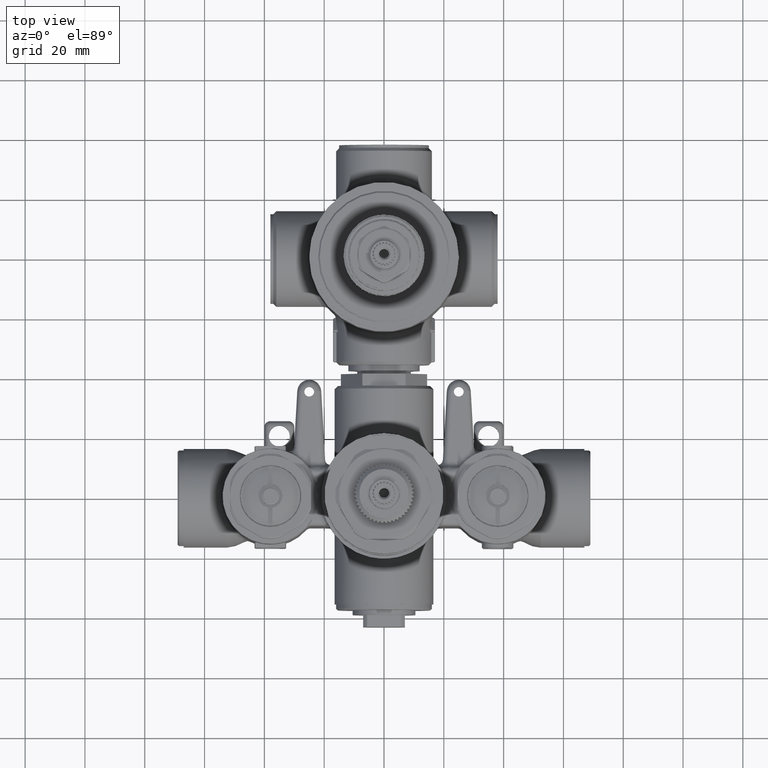
[diagram: clean part render]
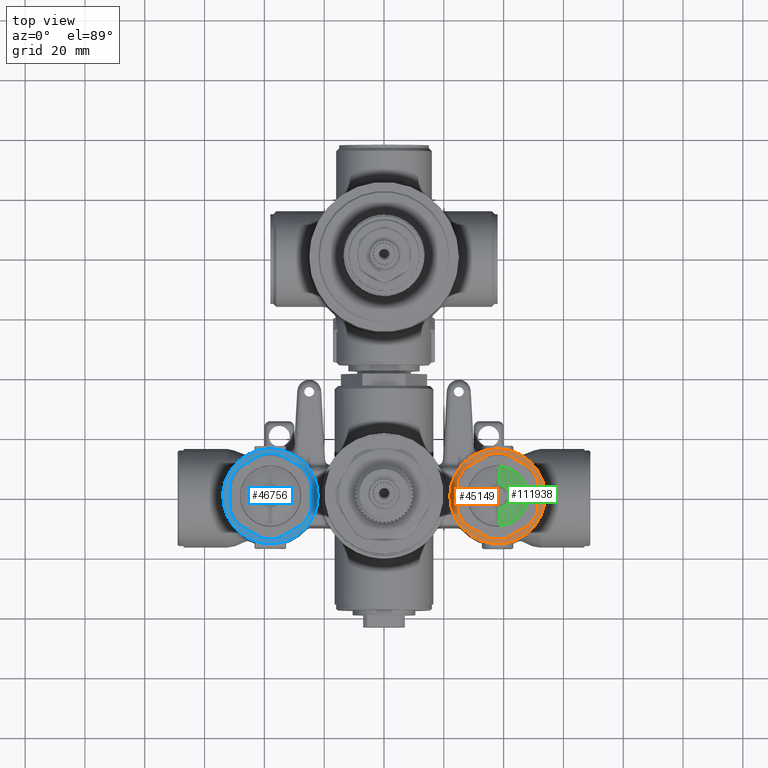
[diagram: same view with three faces highlighted in distinct colors, each labeled with its STEP entity id]
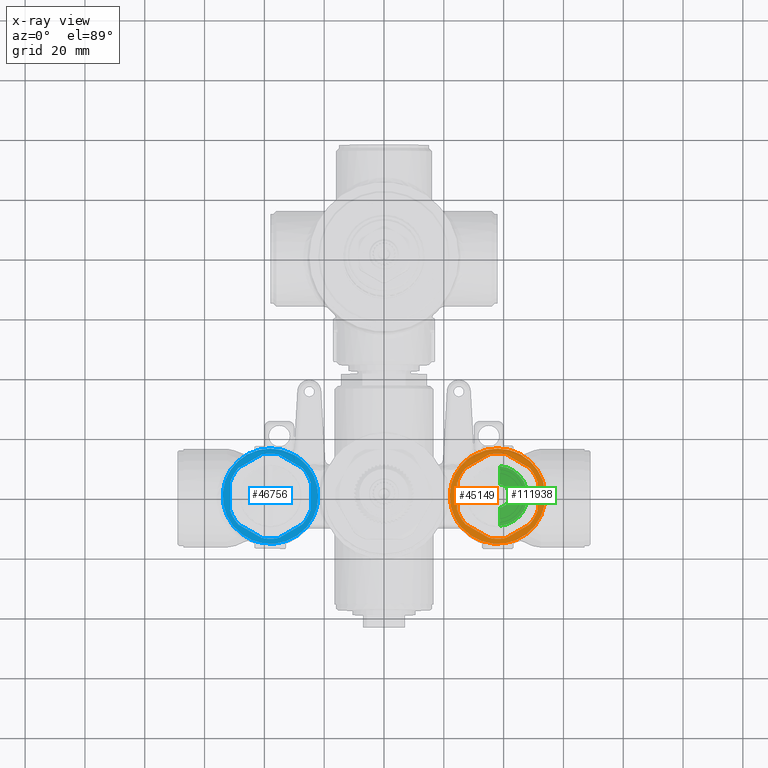
[diagram: x-ray of the same camera — body ghosted, the three highlighted faces saturated]
A machine part, top view with three faces highlighted in distinct colors.
The next image is the same camera in x-ray (body ghosted, the three faces saturated) — at least one of them is partly hidden behind the body in this view.
Their STEP definitions:

[orange] entity #45149 — the highlighted planar face has unit normal (0, 0, 1).
#60=DIRECTION('',(-8.660254037505E-1,-5.000000000588E-1,0.E0));
#61=VECTOR('',#60,3.592182597736E-1);
#62=CARTESIAN_POINT('',(1.385861029833E0,5.500936574872E-1,-7.559018110236E-1));
#63=LINE('',#62,#61);
#64=CARTESIAN_POINT('',(1.496062992115E0,0.E0,-7.559018110236E-1));
#65=DIRECTION('',(0.E0,0.E0,-1.E0));
#66=DIRECTION('',(-9.473684210394E-1,3.201453963706E-1,0.E0));
#67=AXIS2_PLACEMENT_3D('',#64,#65,#66);
#69=DIRECTION('',(-3.843704563953E-11,-1.E0,0.E0));
#70=VECTOR('',#69,3.592182597809E-1);
#71=CARTESIAN_POINT('',(9.645669291466E-1,1.796091299133E-1,
-7.559018110236E-1));
#72=LINE('',#71,#70);
#73=CARTESIAN_POINT('',(1.496062992115E0,0.E0,-7.559018110236E-1));
#74=DIRECTION('',(0.E0,0.E0,-1.E0));
#75=DIRECTION('',(-7.509382566720E-1,-6.603724211885E-1,0.E0));
#76=AXIS2_PLACEMENT_3D('',#73,#74,#75);
#78=DIRECTION('',(8.660254037954E-1,-4.999999999811E-1,0.E0));
#79=VECTOR('',#78,3.592182595757E-1);
#80=CARTESIAN_POINT('',(1.074768891487E0,-3.704845276953E-1,
-7.559018110236E-1));
#81=LINE('',#80,#79);
#82=CARTESIAN_POINT('',(1.496062992115E0,0.E0,-7.559018110236E-1));
#83=DIRECTION('',(0.E0,0.E0,-1.E0));
#84=DIRECTION('',(1.964301644593E-1,-9.805178175283E-1,0.E0));
#85=AXIS2_PLACEMENT_3D('',#82,#83,#84);
#87=DIRECTION('',(8.660254037654E-1,5.000000000329E-1,0.E0));
#88=VECTOR('',#87,3.592182595757E-1);
#89=CARTESIAN_POINT('',(1.606264954480E0,-5.500936574679E-1,
-7.559018110236E-1));
#90=LINE('',#89,#88);
#91=CARTESIAN_POINT('',(1.496062992115E0,0.E0,-7.559018110236E-1));
#92=DIRECTION('',(0.E0,0.E0,-1.E0));
#93=DIRECTION('',(9.473684210532E-1,-3.201453963299E-1,0.E0));
#94=AXIS2_PLACEMENT_3D('',#91,#92,#93);
#96=DIRECTION('',(6.836672896980E-11,1.E0,0.E0));
#97=VECTOR('',#96,3.592182595831E-1);
#98=CARTESIAN_POINT('',(2.027559055108E0,-1.796091298321E-1,
-7.559018110236E-1));
#99=LINE('',#98,#97);
#100=CARTESIAN_POINT('',(1.496062992115E0,0.E0,-7.559018110236E-1));
#101=DIRECTION('',(0.E0,0.E0,-1.E0));
#102=DIRECTION('',(7.509382567128E-1,6.603724211421E-1,0.E0));
#103=AXIS2_PLACEMENT_3D('',#100,#101,#102);
#105=DIRECTION('',(-8.660254037804E-1,5.000000000070E-1,0.E0));
#106=VECTOR('',#105,3.592182597736E-1);
#107=CARTESIAN_POINT('',(1.917357092827E0,3.704845276064E-1,
-7.559018110236E-1));
#108=LINE('',#107,#106);
#109=CARTESIAN_POINT('',(1.496062992137E0,0.E0,-7.559018107676E-1));
#110=DIRECTION('',(1.122966409733E-9,0.E0,1.E0));
#111=DIRECTION('',(-7.453559929111E-1,-6.666666662070E-1,8.370117532040E-10));
#112=AXIS2_PLACEMENT_3D('',#109,#110,#111);
#134=CARTESIAN_POINT('',(1.197536238559E0,5.518503399893E-1,
-7.559018047628E-1));
#135=CARTESIAN_POINT('',(1.190894101108E0,5.482575198271E-1,
-7.559018047628E-1));
#136=CARTESIAN_POINT('',(1.177991653244E0,5.412246959471E-1,
-7.559018121224E-1));
#137=CARTESIAN_POINT('',(1.159528784663E0,5.303948730774E-1,
-7.559018165690E-1));
#138=CARTESIAN_POINT('',(1.148848581527E0,5.234703120119E-1,
-7.559017973519E-1));
#139=CARTESIAN_POINT('',(1.143815870117E0,5.200615449805E-1,
-7.559017973519E-1));
#153=CARTESIAN_POINT('',(1.496062992222E0,-2.007096534185E-10,
-7.559018322200E-1));
#154=DIRECTION('',(2.234526305236E-8,-2.532551507587E-8,1.E0));
#155=DIRECTION('',(-5.607907059800E-1,8.279575980003E-1,3.349946848307E-8));
#156=AXIS2_PLACEMENT_3D('',#153,#154,#155);
#163=CARTESIAN_POINT('',(9.678579580847E-1,4.724409448636E-1,
-7.559018107735E-1));
#164=DIRECTION('',(-8.545545221388E-10,3.431693024004E-9,-1.E0));
#165=DIRECTION('',(7.453559924514E-1,-6.666666667209E-1,-2.924743199493E-9));
#166=AXIS2_PLACEMENT_3D('',#163,#164,#165);
#185=CARTESIAN_POINT('',(1.016069551814E0,4.079302524523E-1,
-7.559018110211E-1));
#186=CARTESIAN_POINT('',(9.888099091498E-1,3.758257936139E-1,
-7.559019102859E-1));
#187=CARTESIAN_POINT('',(9.407113942130E-1,3.061408668400E-1,
-7.559017360037E-1));
#188=CARTESIAN_POINT('',(8.908405056121E-1,1.893573436246E-1,
-7.559018251838E-1));
#189=CARTESIAN_POINT('',(8.652525232606E-1,6.494994151090E-2,
-7.559018158154E-1));
#190=CARTESIAN_POINT('',(8.649585060834E-1,-6.203240845443E-2,
-7.559017637766E-1));
#191=CARTESIAN_POINT('',(8.899718568595E-1,-1.865558554637E-1,
-7.559019277806E-1));
#192=CARTESIAN_POINT('',(9.393011312797E-1,-3.035725856872E-1,
-7.559014420360E-1));
#193=CARTESIAN_POINT('',(9.870788595507E-1,-3.734711497347E-1,
-7.559025225465E-1));
#194=CARTESIAN_POINT('',(1.014183550554E0,-4.057044371927E-1,
-7.559018110276E-1));
#210=CARTESIAN_POINT('',(9.678579580929E-1,-4.724409448706E-1,
-7.559018111393E-1));
#211=DIRECTION('',(8.182009705714E-10,1.179423058925E-9,-1.E0));
#212=DIRECTION('',(5.701467944239E-1,8.215428368674E-1,1.435441193051E-9));
#213=AXIS2_PLACEMENT_3D('',#210,#211,#212);
#39193=CARTESIAN_POINT('',(1.496062992115E0,0.E0,-7.559018110236E-1));
#39194=DIRECTION('',(0.E0,0.E0,-1.E0));
#39195=DIRECTION('',(-1.964301644171E-1,9.805178175368E-1,0.E0));
#39196=AXIS2_PLACEMENT_3D('',#39193,#39194,#39195);
#40886=VERTEX_POINT('',#134);
#40887=VERTEX_POINT('',#139);
#40888=CARTESIAN_POINT('',(1.014176960358E0,-4.056984061177E-1,
-7.559018110227E-1));
#40889=CARTESIAN_POINT('',(1.028411040380E0,-4.182806210571E-1,
-7.559018110259E-1));
#40890=VERTEX_POINT('',#40888);
#40891=VERTEX_POINT('',#40889);
#40892=VERTEX_POINT('',#185);
#40893=CARTESIAN_POINT('',(1.027885670169E0,4.187505269537E-1,
-7.559018111534E-1));
#40894=VERTEX_POINT('',#40893);
#43396=CARTESIAN_POINT('',(1.606264954480E0,-5.500936574679E-1,
-7.559018110236E-1));
#43397=CARTESIAN_POINT('',(1.917357092769E0,-3.704845276682E-1,
-7.559018110236E-1));
#43398=VERTEX_POINT('',#43396);
#43399=VERTEX_POINT('',#43397);
#43400=CARTESIAN_POINT('',(2.027559055108E0,-1.796091298321E-1,
-7.559018110236E-1));
#43401=CARTESIAN_POINT('',(2.027559055133E0,1.796091297510E-1,
-7.559018110236E-1));
#43402=VERTEX_POINT('',#43400);
#43403=VERTEX_POINT('',#43401);
#43404=CARTESIAN_POINT('',(1.917357092827E0,3.704845276064E-1,
-7.559018110236E-1));
#43405=CARTESIAN_POINT('',(1.606264954361E0,5.500936574956E-1,
-7.559018110236E-1));
#43406=VERTEX_POINT('',#43404);
#43407=VERTEX_POINT('',#43405);
#43408=CARTESIAN_POINT('',(1.385861029833E0,5.500936574872E-1,
-7.559018110236E-1));
#43409=CARTESIAN_POINT('',(1.074768891378E0,3.704845275793E-1,
-7.559018110236E-1));
#43410=VERTEX_POINT('',#43408);
#43411=VERTEX_POINT('',#43409);
#43412=CARTESIAN_POINT('',(9.645669291466E-1,1.796091299133E-1,
-7.559018110236E-1));
#43413=CARTESIAN_POINT('',(9.645669291328E-1,-1.796091298676E-1,
-7.559018110236E-1));
#43414=VERTEX_POINT('',#43412);
#43415=VERTEX_POINT('',#43413);
#43416=CARTESIAN_POINT('',(1.074768891487E0,-3.704845276953E-1,
-7.559018110236E-1));
#43417=CARTESIAN_POINT('',(1.385861029787E0,-5.500936574763E-1,
-7.559018110236E-1));
#43418=VERTEX_POINT('',#43416);
#43419=VERTEX_POINT('',#43417);
#45105=CARTESIAN_POINT('',(1.494812612574E0,0.E0,-7.559018110236E-1));
#45106=DIRECTION('',(0.E0,0.E0,1.E0));
#45107=DIRECTION('',(0.E0,-1.E0,0.E0));
#45108=AXIS2_PLACEMENT_3D('',#45105,#45106,#45107);
#45109=PLANE('',#45108);
#45111=ORIENTED_EDGE('',*,*,#45110,.F.);
#45113=ORIENTED_EDGE('',*,*,#45112,.F.);
#45115=ORIENTED_EDGE('',*,*,#45114,.F.);
#45117=ORIENTED_EDGE('',*,*,#45116,.F.);
#45119=ORIENTED_EDGE('',*,*,#45118,.F.);
#45121=ORIENTED_EDGE('',*,*,#45120,.F.);
#45122=EDGE_LOOP('',(#45111,#45113,#45115,#45117,#45119,#45121));
#45123=FACE_OUTER_BOUND('',#45122,.F.);
#45125=ORIENTED_EDGE('',*,*,#45124,.F.);
#45127=ORIENTED_EDGE('',*,*,#45126,.T.);
#45129=ORIENTED_EDGE('',*,*,#45128,.F.);
#45130=ORIENTED_EDGE('',*,*,#45093,.T.);
#45132=ORIENTED_EDGE('',*,*,#45131,.F.);
#45134=ORIENTED_EDGE('',*,*,#45133,.T.);
#45136=ORIENTED_EDGE('',*,*,#45135,.F.);
#45138=ORIENTED_EDGE('',*,*,#45137,.T.);
#45140=ORIENTED_EDGE('',*,*,#45139,.F.);
#45142=ORIENTED_EDGE('',*,*,#45141,.T.);
#45144=ORIENTED_EDGE('',*,*,#45143,.F.);
#45146=ORIENTED_EDGE('',*,*,#45145,.T.);
#45147=EDGE_LOOP('',(#45125,#45127,#45129,#45130,#45132,#45134,#45136,#45138,
#45140,#45142,#45144,#45146));
#45148=FACE_BOUND('',#45147,.F.);
#45149=ADVANCED_FACE('',(#45123,#45148),#45109,.T.);
#68=CIRCLE('',#67,5.610236220472E-1);
#77=CIRCLE('',#76,5.610236220472E-1);
#86=CIRCLE('',#85,5.610236220472E-1);
#95=CIRCLE('',#94,5.610236220472E-1);
#104=CIRCLE('',#103,5.610236220472E-1);
#113=CIRCLE('',#112,6.274209320224E-1);
#140=B_SPLINE_CURVE_WITH_KNOTS('',3,(#134,#135,#136,#137,#138,#139),
.UNSPECIFIED.,.F.,.F.,(4,1,1,4),(0.E0,3.333333333333E-1,6.666666666667E-1,1.E0),
.UNSPECIFIED.);
#157=CIRCLE('',#156,6.281257906472E-1);
#167=CIRCLE('',#166,8.053562691192E-2);
#195=B_SPLINE_CURVE_WITH_KNOTS('',3,(#185,#186,#187,#188,#189,#190,#191,#192,
#193,#194),.UNSPECIFIED.,.F.,.F.,(4,1,1,1,1,1,1,4),(0.E0,1.428569405749E-1,
2.857138811499E-1,4.285708217248E-1,5.714277622997E-1,7.142847028747E-1,
8.571416434496E-1,1.E0),.UNSPECIFIED.);
#214=CIRCLE('',#213,8.124048528911E-2);
#39197=CIRCLE('',#39196,5.610236220472E-1);
#45093=EDGE_CURVE('',#43414,#43415,#72,.T.);
#45110=EDGE_CURVE('',#40891,#40886,#113,.T.);
#45112=EDGE_CURVE('',#40890,#40891,#214,.T.);
#45114=EDGE_CURVE('',#40892,#40890,#195,.T.);
#45116=EDGE_CURVE('',#40894,#40892,#167,.T.);
#45118=EDGE_CURVE('',#40887,#40894,#157,.T.);
#45120=EDGE_CURVE('',#40886,#40887,#140,.T.);
#45124=EDGE_CURVE('',#43410,#43407,#39197,.T.);
#45126=EDGE_CURVE('',#43410,#43411,#63,.T.);
#45128=EDGE_CURVE('',#43414,#43411,#68,.T.);
#45131=EDGE_CURVE('',#43418,#43415,#77,.T.);
#45133=EDGE_CURVE('',#43418,#43419,#81,.T.);
#45135=EDGE_CURVE('',#43398,#43419,#86,.T.);
#45137=EDGE_CURVE('',#43398,#43399,#90,.T.);
#45139=EDGE_CURVE('',#43402,#43399,#95,.T.);
#45141=EDGE_CURVE('',#43402,#43403,#99,.T.);
#45143=EDGE_CURVE('',#43406,#43403,#104,.T.);
#45145=EDGE_CURVE('',#43406,#43407,#108,.T.);

[blue] entity #46756 — the highlighted planar face has unit normal (0, 0, 1).
#1104=CARTESIAN_POINT('',(-1.014188321640E0,-4.057062922256E-1,
-7.559018110236E-1));
#1105=CARTESIAN_POINT('',(-9.870775072087E-1,-3.734761508112E-1,
-7.559019336386E-1));
#1106=CARTESIAN_POINT('',(-9.393015694095E-1,-3.035694586617E-1,
-7.559017076265E-1));
#1107=CARTESIAN_POINT('',(-8.899714431052E-1,-1.865567195852E-1,
-7.559019116283E-1));
#1108=CARTESIAN_POINT('',(-8.649587917366E-1,-6.203206909905E-2,
-7.559017258139E-1));
#1109=CARTESIAN_POINT('',(-8.652523171963E-1,6.494973280039E-2,
-7.559019697291E-1));
#1110=CARTESIAN_POINT('',(-8.908407052038E-1,1.893575751537E-1,
-7.559015705081E-1));
#1111=CARTESIAN_POINT('',(-9.407111160559E-1,3.061404718875E-1,
-7.559023286437E-1));
#1112=CARTESIAN_POINT('',(-9.888102137003E-1,3.758262784701E-1,
-7.559011563520E-1));
#1113=CARTESIAN_POINT('',(-1.016069551775E0,4.079302524241E-1,
-7.559018110236E-1));
#1133=DIRECTION('',(8.660254037505E-1,5.000000000588E-1,0.E0));
#1134=VECTOR('',#1133,3.592182597736E-1);
#1135=CARTESIAN_POINT('',(-1.385861029844E0,-5.500936574872E-1,
-7.559018110236E-1));
#1136=LINE('',#1135,#1134);
#1137=CARTESIAN_POINT('',(-1.496062992126E0,0.E0,-7.559018110236E-1));
#1138=DIRECTION('',(0.E0,0.E0,-1.E0));
#1139=DIRECTION('',(9.473684210394E-1,-3.201453963706E-1,0.E0));
#1140=AXIS2_PLACEMENT_3D('',#1137,#1138,#1139);
#1142=DIRECTION('',(3.843704563953E-11,1.E0,0.E0));
#1143=VECTOR('',#1142,3.592182597809E-1);
#1144=CARTESIAN_POINT('',(-9.645669291575E-1,-1.796091299133E-1,
-7.559018110236E-1));
#1145=LINE('',#1144,#1143);
#1146=CARTESIAN_POINT('',(-1.496062992126E0,0.E0,-7.559018110236E-1));
#1147=DIRECTION('',(0.E0,0.E0,-1.E0));
#1148=DIRECTION('',(7.509382566720E-1,6.603724211885E-1,0.E0));
#1149=AXIS2_PLACEMENT_3D('',#1146,#1147,#1148);
#1151=DIRECTION('',(-8.660254037954E-1,4.999999999811E-1,0.E0));
#1152=VECTOR('',#1151,3.592182595757E-1);
#1153=CARTESIAN_POINT('',(-1.074768891498E0,3.704845276953E-1,
-7.559018110236E-1));
#1154=LINE('',#1153,#1152);
#1155=CARTESIAN_POINT('',(-1.496062992126E0,0.E0,-7.559018110236E-1));
#1156=DIRECTION('',(0.E0,0.E0,-1.E0));
#1157=DIRECTION('',(-1.964301644593E-1,9.805178175283E-1,0.E0));
#1158=AXIS2_PLACEMENT_3D('',#1155,#1156,#1157);
#1160=DIRECTION('',(-8.660254037654E-1,-5.000000000329E-1,0.E0));
#1161=VECTOR('',#1160,3.592182595757E-1);
#1162=CARTESIAN_POINT('',(-1.606264954491E0,5.500936574679E-1,
-7.559018110236E-1));
#1163=LINE('',#1162,#1161);
#1164=CARTESIAN_POINT('',(-1.496062992126E0,0.E0,-7.559018110236E-1));
#1165=DIRECTION('',(0.E0,0.E0,-1.E0));
#1166=DIRECTION('',(-9.473684210532E-1,3.201453963299E-1,0.E0));
#1167=AXIS2_PLACEMENT_3D('',#1164,#1165,#1166);
#1169=DIRECTION('',(-6.836796523549E-11,-1.E0,0.E0));
#1170=VECTOR('',#1169,3.592182595831E-1);
#1171=CARTESIAN_POINT('',(-2.027559055119E0,1.796091298321E-1,
-7.559018110236E-1));
#1172=LINE('',#1171,#1170);
#1173=CARTESIAN_POINT('',(-1.496062992126E0,0.E0,-7.559018110236E-1));
#1174=DIRECTION('',(0.E0,0.E0,-1.E0));
#1175=DIRECTION('',(-7.509382567128E-1,-6.603724211421E-1,0.E0));
#1176=AXIS2_PLACEMENT_3D('',#1173,#1174,#1175);
#1178=DIRECTION('',(8.660254037804E-1,-5.000000000070E-1,0.E0));
#1179=VECTOR('',#1178,3.592182597736E-1);
#1180=CARTESIAN_POINT('',(-1.917357092837E0,-3.704845276064E-1,
-7.559018110236E-1));
#1181=LINE('',#1180,#1179);
#1182=CARTESIAN_POINT('',(-1.496062992090E0,1.844346089351E-10,
-7.559018123510E-1));
#1183=DIRECTION('',(3.937519814098E-9,1.080584575293E-8,1.E0));
#1184=DIRECTION('',(4.758001595927E-1,8.795534140299E-1,-1.137779111244E-8));
#1185=AXIS2_PLACEMENT_3D('',#1182,#1183,#1184);
#1206=CARTESIAN_POINT('',(-9.678579580929E-1,-4.724409448706E-1,
-7.559018111393E-1));
#1207=DIRECTION('',(-8.181909747337E-10,1.179399735304E-9,-1.E0));
#1208=DIRECTION('',(-7.453559794516E-1,6.666666812551E-1,1.396109413141E-9));
#1209=AXIS2_PLACEMENT_3D('',#1206,#1207,#1208);
#6662=CARTESIAN_POINT('',(-9.678579580847E-1,4.724409448636E-1,
-7.559018107735E-1));
#6663=DIRECTION('',(8.545606125051E-10,3.431708249920E-9,-1.E0));
#6664=DIRECTION('',(-5.986368468398E-1,-8.010205525488E-1,-3.260440542654E-9));
#6665=AXIS2_PLACEMENT_3D('',#6662,#6663,#6664);
#6667=CARTESIAN_POINT('',(-1.496062992222E0,-2.007018362187E-10,
-7.559018322198E-1));
#6668=DIRECTION('',(-2.234509047903E-8,-2.532531476754E-8,1.E0));
#6669=DIRECTION('',(7.453559944516E-1,6.666666644847E-1,3.353859017450E-8));
#6670=AXIS2_PLACEMENT_3D('',#6667,#6668,#6669);
#6677=CARTESIAN_POINT('',(-1.143816314498E0,5.200618810591E-1,
-7.559018110235E-1));
#6678=CARTESIAN_POINT('',(-1.148795299544E0,5.234342505748E-1,
-7.559018110235E-1));
#6679=CARTESIAN_POINT('',(-1.159402910249E0,5.303096861408E-1,
-7.559018110359E-1));
#6680=CARTESIAN_POINT('',(-1.177655011688E0,5.410376909159E-1,
-7.559018109807E-1));
#6681=CARTESIAN_POINT('',(-1.190748436034E0,5.481782818781E-1,
-7.559018111157E-1));
#6682=CARTESIAN_POINT('',(-1.197536071033E0,5.518502615923E-1,
-7.559018111157E-1));
#38650=CARTESIAN_POINT('',(-1.496062992126E0,0.E0,-7.559018110236E-1));
#38651=DIRECTION('',(0.E0,0.E0,-1.E0));
#38652=DIRECTION('',(1.964301644171E-1,-9.805178175368E-1,0.E0));
#38653=AXIS2_PLACEMENT_3D('',#38650,#38651,#38652);
#40878=VERTEX_POINT('',#1104);
#40879=VERTEX_POINT('',#1113);
#40880=CARTESIAN_POINT('',(-1.028411039577E0,-4.182806201594E-1,
-7.559018110259E-1));
#40881=VERTEX_POINT('',#40880);
#40882=VERTEX_POINT('',#6677);
#40883=VERTEX_POINT('',#6682);
#40884=CARTESIAN_POINT('',(-1.027885668893E0,4.187505255269E-1,
-7.559018111534E-1));
#40885=VERTEX_POINT('',#40884);
#43261=CARTESIAN_POINT('',(-1.606264954491E0,5.500936574679E-1,
-7.559018110236E-1));
#43262=CARTESIAN_POINT('',(-1.917357092779E0,3.704845276682E-1,
-7.559018110236E-1));
#43263=VERTEX_POINT('',#43261);
#43264=VERTEX_POINT('',#43262);
#43265=CARTESIAN_POINT('',(-2.027559055119E0,1.796091298321E-1,
-7.559018110236E-1));
#43266=CARTESIAN_POINT('',(-2.027559055144E0,-1.796091297510E-1,
-7.559018110236E-1));
#43267=VERTEX_POINT('',#43265);
#43268=VERTEX_POINT('',#43266);
#43269=CARTESIAN_POINT('',(-1.917357092837E0,-3.704845276064E-1,
-7.559018110236E-1));
#43270=CARTESIAN_POINT('',(-1.606264954372E0,-5.500936574956E-1,
-7.559018110236E-1));
#43271=VERTEX_POINT('',#43269);
#43272=VERTEX_POINT('',#43270);
#43273=CARTESIAN_POINT('',(-1.385861029844E0,-5.500936574872E-1,
-7.559018110236E-1));
#43274=CARTESIAN_POINT('',(-1.074768891389E0,-3.704845275793E-1,
-7.559018110236E-1));
#43275=VERTEX_POINT('',#43273);
#43276=VERTEX_POINT('',#43274);
#43277=CARTESIAN_POINT('',(-9.645669291575E-1,-1.796091299133E-1,
-7.559018110236E-1));
#43278=CARTESIAN_POINT('',(-9.645669291437E-1,1.796091298676E-1,
-7.559018110236E-1));
#43279=VERTEX_POINT('',#43277);
#43280=VERTEX_POINT('',#43278);
#43281=CARTESIAN_POINT('',(-1.074768891498E0,3.704845276953E-1,
-7.559018110236E-1));
#43282=CARTESIAN_POINT('',(-1.385861029798E0,5.500936574763E-1,
-7.559018110236E-1));
#43283=VERTEX_POINT('',#43281);
#43284=VERTEX_POINT('',#43282);
#46712=CARTESIAN_POINT('',(-1.494812586662E0,0.E0,-7.559018110236E-1));
#46713=DIRECTION('',(0.E0,0.E0,1.E0));
#46714=DIRECTION('',(0.E0,-1.E0,0.E0));
#46715=AXIS2_PLACEMENT_3D('',#46712,#46713,#46714);
#46716=PLANE('',#46715);
#46718=ORIENTED_EDGE('',*,*,#46717,.F.);
#46720=ORIENTED_EDGE('',*,*,#46719,.F.);
#46722=ORIENTED_EDGE('',*,*,#46721,.F.);
#46724=ORIENTED_EDGE('',*,*,#46723,.F.);
#46725=ORIENTED_EDGE('',*,*,#46693,.F.);
#46727=ORIENTED_EDGE('',*,*,#46726,.F.);
#46728=EDGE_LOOP('',(#46718,#46720,#46722,#46724,#46725,#46727));
#46729=FACE_OUTER_BOUND('',#46728,.F.);
#46731=ORIENTED_EDGE('',*,*,#46730,.F.);
#46733=ORIENTED_EDGE('',*,*,#46732,.T.);
#46735=ORIENTED_EDGE('',*,*,#46734,.F.);
#46737=ORIENTED_EDGE('',*,*,#46736,.T.);
#46739=ORIENTED_EDGE('',*,*,#46738,.F.);
#46741=ORIENTED_EDGE('',*,*,#46740,.T.);
#46743=ORIENTED_EDGE('',*,*,#46742,.F.);
#46745=ORIENTED_EDGE('',*,*,#46744,.T.);
#46747=ORIENTED_EDGE('',*,*,#46746,.F.);
#46749=ORIENTED_EDGE('',*,*,#46748,.T.);
#46751=ORIENTED_EDGE('',*,*,#46750,.F.);
#46753=ORIENTED_EDGE('',*,*,#46752,.T.);
#46754=EDGE_LOOP('',(#46731,#46733,#46735,#46737,#46739,#46741,#46743,#46745,
#46747,#46749,#46751,#46753));
#46755=FACE_BOUND('',#46754,.F.);
#46756=ADVANCED_FACE('',(#46729,#46755),#46716,.T.);
#1114=B_SPLINE_CURVE_WITH_KNOTS('',3,(#1104,#1105,#1106,#1107,#1108,#1109,#1110,
#1111,#1112,#1113),.UNSPECIFIED.,.F.,.F.,(4,1,1,1,1,1,1,4),(0.E0,
1.428571428571E-1,2.857142857143E-1,4.285714285714E-1,5.714285714286E-1,
7.142857142857E-1,8.571428571429E-1,1.E0),.UNSPECIFIED.);
#1141=CIRCLE('',#1140,5.610236220472E-1);
#1150=CIRCLE('',#1149,5.610236220472E-1);
#1159=CIRCLE('',#1158,5.610236220472E-1);
#1168=CIRCLE('',#1167,5.610236220472E-1);
#1177=CIRCLE('',#1176,5.610236220472E-1);
#1186=CIRCLE('',#1185,6.274209339746E-1);
#1210=CIRCLE('',#1209,8.124048528911E-2);
#6666=CIRCLE('',#6665,8.053562691192E-2);
#6671=CIRCLE('',#6670,6.281257906472E-1);
#6683=B_SPLINE_CURVE_WITH_KNOTS('',3,(#6677,#6678,#6679,#6680,#6681,#6682),
.UNSPECIFIED.,.F.,.F.,(4,1,1,4),(0.E0,3.333333333333E-1,6.666666666667E-1,1.E0),
.UNSPECIFIED.);
#38654=CIRCLE('',#38653,5.610236220472E-1);
#46693=EDGE_CURVE('',#40878,#40879,#1114,.T.);
#46717=EDGE_CURVE('',#40883,#40881,#1186,.T.);
#46719=EDGE_CURVE('',#40882,#40883,#6683,.T.);
#46721=EDGE_CURVE('',#40885,#40882,#6671,.T.);
#46723=EDGE_CURVE('',#40879,#40885,#6666,.T.);
#46726=EDGE_CURVE('',#40881,#40878,#1210,.T.);
#46730=EDGE_CURVE('',#43275,#43272,#38654,.T.);
#46732=EDGE_CURVE('',#43275,#43276,#1136,.T.);
#46734=EDGE_CURVE('',#43279,#43276,#1141,.T.);
#46736=EDGE_CURVE('',#43279,#43280,#1145,.T.);
#46738=EDGE_CURVE('',#43283,#43280,#1150,.T.);
#46740=EDGE_CURVE('',#43283,#43284,#1154,.T.);
#46742=EDGE_CURVE('',#43263,#43284,#1159,.T.);
#46744=EDGE_CURVE('',#43263,#43264,#1163,.T.);
#46746=EDGE_CURVE('',#43267,#43264,#1168,.T.);
#46748=EDGE_CURVE('',#43267,#43268,#1172,.T.);
#46750=EDGE_CURVE('',#43271,#43268,#1177,.T.);
#46752=EDGE_CURVE('',#43271,#43272,#1181,.T.);

[green] entity #111938 — the highlighted spherical surface has radius 33.9169 mm.
#39450=CARTESIAN_POINT('',(1.496062992115E0,0.E0,-5.683701853633E-1));
#39451=DIRECTION('',(0.E0,0.E0,1.E0));
#39452=DIRECTION('',(1.875000000292E-1,-9.822646028383E-1,0.E0));
#39453=AXIS2_PLACEMENT_3D('',#39450,#39451,#39452);
#39455=CARTESIAN_POINT('',(1.525590551170E0,0.E0,-1.894361456693E0));
#39456=DIRECTION('',(1.E0,0.E0,0.E0));
#39457=DIRECTION('',(0.E0,2.933406253666E-1,9.560079902959E-1));
#39458=AXIS2_PLACEMENT_3D('',#39455,#39456,#39457);
#39460=CARTESIAN_POINT('',(1.496062992115E0,0.E0,-6.181065354331E-1));
#39461=DIRECTION('',(0.E0,0.E0,1.E0));
#39462=DIRECTION('',(1.E0,4.102064129415E-10,0.E0));
#39463=AXIS2_PLACEMENT_3D('',#39460,#39461,#39462);
#39465=CARTESIAN_POINT('',(1.496062992115E0,0.E0,-6.181065354331E-1));
#39466=DIRECTION('',(0.E0,0.E0,1.E0));
#39467=DIRECTION('',(7.518796988490E-2,-9.971693783829E-1,0.E0));
#39468=AXIS2_PLACEMENT_3D('',#39465,#39466,#39467);
#39470=CARTESIAN_POINT('',(1.525590551170E0,0.E0,-1.894361456693E0));
#39471=DIRECTION('',(1.E0,0.E0,0.E0));
#39472=DIRECTION('',(0.E0,-1.158720954807E-1,9.932641428587E-1));
#39473=AXIS2_PLACEMENT_3D('',#39470,#39471,#39472);
#43334=CARTESIAN_POINT('',(1.525590551155E0,-3.916049035185E-1,
-6.181065354331E-1));
#43335=CARTESIAN_POINT('',(1.888779527548E0,1.610947937547E-10,
-6.181065354331E-1));
#43336=VERTEX_POINT('',#43334);
#43337=VERTEX_POINT('',#43335);
#43338=CARTESIAN_POINT('',(1.525590551170E0,-1.546873390155E-1,
-5.683701853615E-1));
#43339=VERTEX_POINT('',#43338);
#43348=CARTESIAN_POINT('',(1.525590551225E0,3.916049035132E-1,
-6.181065354331E-1));
#43349=VERTEX_POINT('',#43348);
#43351=CARTESIAN_POINT('',(1.525590551981E0,1.546873431554E-1,
-5.683701858587E-1));
#43353=VERTEX_POINT('',#43351);
#111923=CARTESIAN_POINT('',(1.496062992115E0,0.E0,-1.894361456693E0));
#111924=DIRECTION('',(0.E0,0.E0,1.E0));
#111925=DIRECTION('',(-1.E0,0.E0,0.E0));
#111926=AXIS2_PLACEMENT_3D('',#111923,#111924,#111925);
#111927=SPHERICAL_SURFACE('',#111926,1.335310039370E0);
#111929=ORIENTED_EDGE('',*,*,#111928,.T.);
#111931=ORIENTED_EDGE('',*,*,#111930,.F.);
#111932=ORIENTED_EDGE('',*,*,#111913,.F.);
#111933=ORIENTED_EDGE('',*,*,#111899,.F.);
#111935=ORIENTED_EDGE('',*,*,#111934,.F.);
#111936=EDGE_LOOP('',(#111929,#111931,#111932,#111933,#111935));
#111937=FACE_OUTER_BOUND('',#111936,.F.);
#111938=ADVANCED_FACE('',(#111937),#111927,.T.);
#39454=CIRCLE('',#39453,1.574803149606E-1);
#39459=CIRCLE('',#39458,1.334983529673E0);
#39464=CIRCLE('',#39463,3.927165354331E-1);
#39469=CIRCLE('',#39468,3.927165354331E-1);
#39474=CIRCLE('',#39473,1.334983529673E0);
#111899=EDGE_CURVE('',#43336,#43337,#39469,.T.);
#111913=EDGE_CURVE('',#43337,#43349,#39464,.T.);
#111928=EDGE_CURVE('',#43339,#43353,#39454,.T.);
#111930=EDGE_CURVE('',#43349,#43353,#39459,.T.);
#111934=EDGE_CURVE('',#43339,#43336,#39474,.T.);